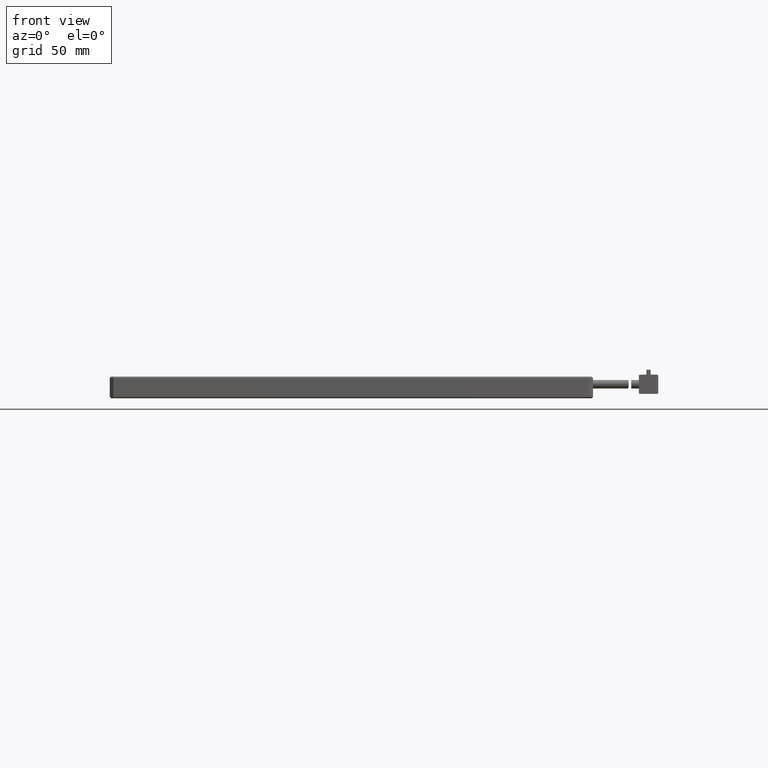
[diagram: clean part render]
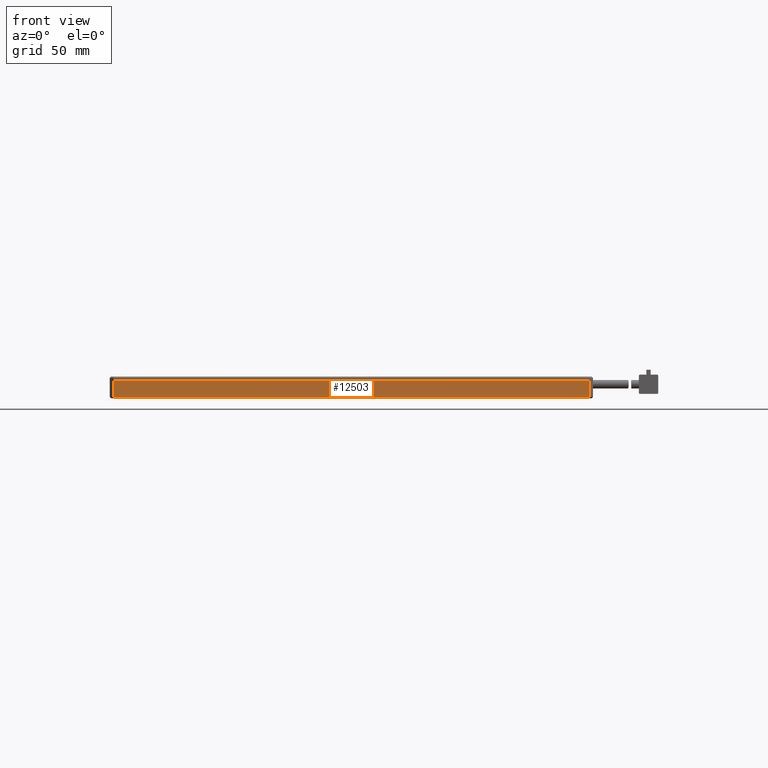
[diagram: same view with one face highlighted and labeled with its STEP entity id]
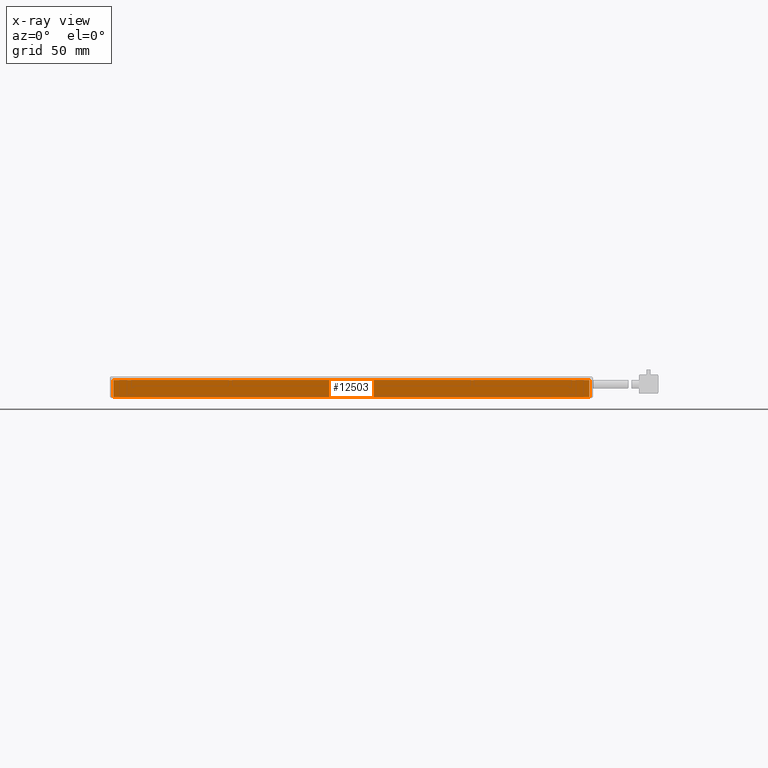
[diagram: x-ray of the same camera — body ghosted, the highlighted face saturated]
A machine part, front view. The second image highlights one B-rep face of the part: STEP entity #12503.
The next image is the same camera in x-ray: the body ghosted, the highlighted face saturated — about 0% of this face is hidden behind the body in this view.
In plain terms, the highlighted planar face has unit normal (0, 1, 0).
Its self-contained STEP definition (entity closure, byte-faithful):
#1037 = ORIENTED_EDGE ( 'NONE', *, *, #23870, .T. ) ;
#1296 = VECTOR ( 'NONE', #6151, 1000.000000000000000 ) ;
#1867 = LINE ( 'NONE', #18992, #27321 ) ;
#2478 = EDGE_CURVE ( 'NONE', #23812, #4681, #25498, .T. ) ;
#3389 = DIRECTION ( 'NONE',  ( 0.0000000000000000000, -0.0000000000000000000, 1.000000000000000000 ) ) ;
#4681 = VERTEX_POINT ( 'NONE', #14293 ) ;
#5523 = EDGE_CURVE ( 'NONE', #21311, #31620, #26596, .T. ) ;
#6151 = DIRECTION ( 'NONE',  ( -1.000000000000000000, 0.0000000000000000000, -0.0000000000000000000 ) ) ;
#6822 = CARTESIAN_POINT ( 'NONE',  ( 54.28104460093888400, -85.04917840375587400, 4.499999999999999100 ) ) ;
#7430 = CARTESIAN_POINT ( 'NONE',  ( 54.28104460093891200, -85.04917840375588900, 4.499999999999999100 ) ) ;
#7697 = VECTOR ( 'NONE', #11787, 1000.000000000000000 ) ;
#7881 = DIRECTION ( 'NONE',  ( 0.0000000000000000000, 1.000000000000000000, 0.0000000000000000000 ) ) ;
#9535 = AXIS2_PLACEMENT_3D ( 'NONE', #22667, #7881, #25122 ) ;
#11787 = DIRECTION ( 'NONE',  ( -0.0000000000000000000, 0.0000000000000000000, -1.000000000000000000 ) ) ;
#12503 = ADVANCED_FACE ( 'NONE', ( #25208 ), #25014, .F. ) ;
#12622 = ORIENTED_EDGE ( 'NONE', *, *, #26959, .F. ) ;
#14124 = DIRECTION ( 'NONE',  ( -1.000000000000000000, -0.0000000000000000000, -0.0000000000000000000 ) ) ;
#14293 = CARTESIAN_POINT ( 'NONE',  ( -142.7189553990610300, -85.04917840375588900, 4.499999999999999100 ) ) ;
#18147 = CARTESIAN_POINT ( 'NONE',  ( -142.7189553990610300, -85.04917840375587400, 4.499999999999999100 ) ) ;
#18992 = CARTESIAN_POINT ( 'NONE',  ( -144.2189553990610300, -85.04917840375587400, -2.500000000000000000 ) ) ;
#19776 = VECTOR ( 'NONE', #3389, 1000.000000000000000 ) ;
#20971 = LINE ( 'NONE', #23431, #1296 ) ;
#21311 = VERTEX_POINT ( 'NONE', #7430 ) ;
#22667 = CARTESIAN_POINT ( 'NONE',  ( -144.2189553990610300, -85.04917840375587400, 4.499999999999999100 ) ) ;
#23302 = ORIENTED_EDGE ( 'NONE', *, *, #5523, .F. ) ;
#23431 = CARTESIAN_POINT ( 'NONE',  ( -144.2189553990610300, -85.04917840375590300, 4.499999999999999100 ) ) ;
#23812 = VERTEX_POINT ( 'NONE', #30586 ) ;
#23870 = EDGE_CURVE ( 'NONE', #21311, #4681, #20971, .T. ) ;
#25014 = PLANE ( 'NONE',  #9535 ) ;
#25122 = DIRECTION ( 'NONE',  ( 0.0000000000000000000, -0.0000000000000000000, 1.000000000000000000 ) ) ;
#25208 = FACE_OUTER_BOUND ( 'NONE', #29216, .T. ) ;
#25498 = LINE ( 'NONE', #18147, #19776 ) ;
#25668 = CARTESIAN_POINT ( 'NONE',  ( 54.28104460093896900, -85.04917840375587400, -2.500000000000000000 ) ) ;
#26596 = LINE ( 'NONE', #6822, #7697 ) ;
#26959 = EDGE_CURVE ( 'NONE', #31620, #23812, #1867, .T. ) ;
#27321 = VECTOR ( 'NONE', #14124, 1000.000000000000000 ) ;
#29216 = EDGE_LOOP ( 'NONE', ( #12622, #23302, #1037, #29817 ) ) ;
#29817 = ORIENTED_EDGE ( 'NONE', *, *, #2478, .F. ) ;
#30586 = CARTESIAN_POINT ( 'NONE',  ( -142.7189553990610300, -85.04917840375588900, -2.500000000000004000 ) ) ;
#31620 = VERTEX_POINT ( 'NONE', #25668 ) ;